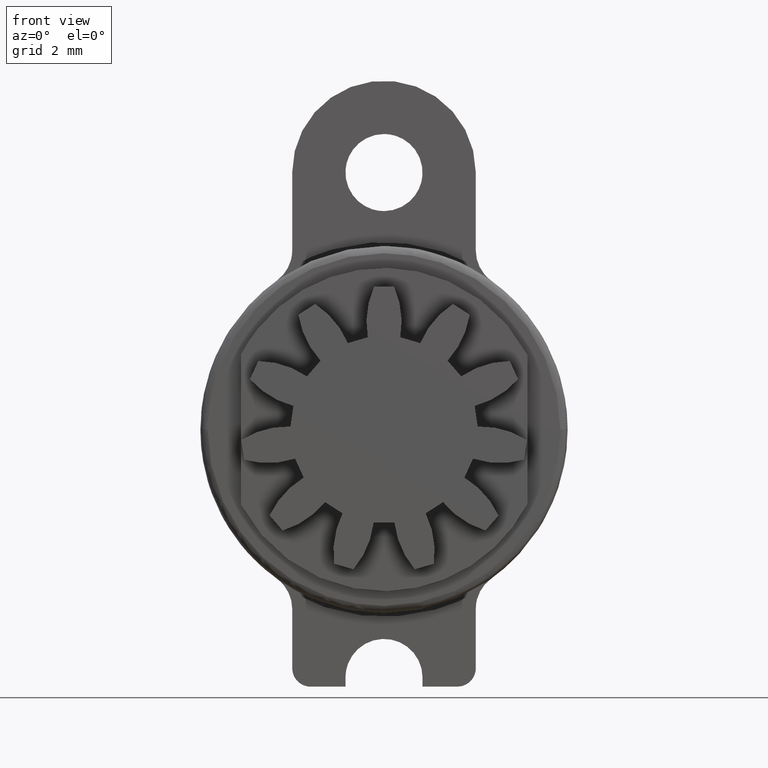
[diagram: clean part render]
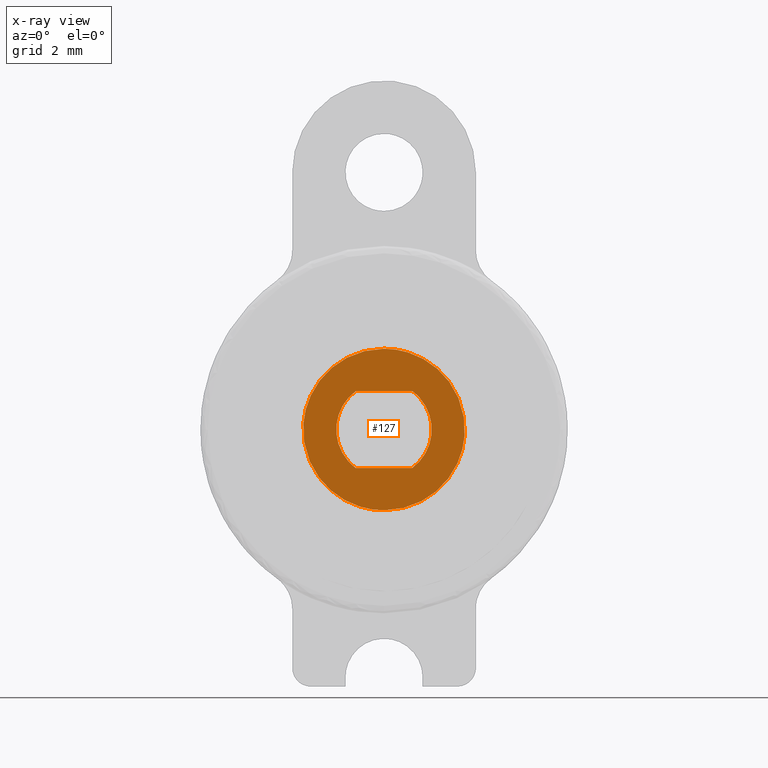
[diagram: x-ray — body ghosted, one internal face saturated and labeled with its STEP entity id]
A machine part, front view, then the same camera in x-ray: the body is ghosted and one INTERNAL B-rep face — a face not visible from any outside direction — is saturated and labeled: STEP entity #127.
In plain terms, the highlighted face is a freeform B-spline surface patch.
Its self-contained STEP definition (entity closure, byte-faithful):
#5=CARTESIAN_POINT('',(-2.419108497303079,-2.500000000000000,-2.419779991471919));
#6=CARTESIAN_POINT('',(-2.419108497303079,-2.500000000000000,2.419780109489115));
#7=CARTESIAN_POINT('',(2.419108575981209,-2.500000000000000,-2.419779991471919));
#8=CARTESIAN_POINT('',(2.419108575981209,-2.500000000000000,2.419780109489115));
#9=B_SPLINE_SURFACE_WITH_KNOTS('',1,1,((#5,#7),(#6,#8)),.UNSPECIFIED.,.F.,.F.,.U.,(2,2),(2,2),(0.0,4.839560100961034),(0.0,4.838217073284289),.UNSPECIFIED.);
#10=CARTESIAN_POINT('',(-2.193218134212658,-2.499999999998625,0.172610010609037));
#11=VERTEX_POINT('',#10);
#12=CARTESIAN_POINT('',(0.0,-2.500000000000000,-2.199999999999975));
#13=VERTEX_POINT('',#12);
#14=CARTESIAN_POINT('',(-2.193218134212657,-2.499999999998625,0.172610010609036));
#15=CARTESIAN_POINT('',(-2.200000000000379,-2.499999999998650,0.086438235420795));
#16=CARTESIAN_POINT('',(-2.200000000000371,-2.499999999998678,3.097929E-014));
#17=CARTESIAN_POINT('',(-2.200000000000165,-2.499999999999365,-2.199999999999960));
#18=CARTESIAN_POINT('',(0.0,-2.500000000000000,-2.199999999999975));
#26=(BOUNDED_CURVE()B_SPLINE_CURVE(2,(#14,#15,#16,#17,#18),.UNSPECIFIED.,.F.,.U.)B_SPLINE_CURVE_WITH_KNOTS((3,2,3),(0.736331300632161,0.750000000000000,1.0),.UNSPECIFIED.)CURVE()GEOMETRIC_REPRESENTATION_ITEM()RATIONAL_B_SPLINE_CURVE((0.969723356170552,0.983986122580641,1.0,0.707106781186547,1.0))REPRESENTATION_ITEM(''));
#27=EDGE_CURVE('',#11,#13,#26,.T.);
#28=ORIENTED_EDGE('',*,*,#27,.F.);
#29=CARTESIAN_POINT('',(0.0,-2.500000000000000,2.199999999999975));
#30=VERTEX_POINT('',#29);
#31=CARTESIAN_POINT('',(0.0,-2.500000000000000,2.199999999999975));
#32=CARTESIAN_POINT('',(-2.033659081641031,-2.499999999999312,2.199999999999991));
#33=CARTESIAN_POINT('',(-2.193218134212657,-2.499999999998625,0.172610010609036));
#41=(BOUNDED_CURVE()B_SPLINE_CURVE(2,(#31,#32,#33),.UNSPECIFIED.,.F.,.U.)B_SPLINE_CURVE_WITH_KNOTS((3,3),(0.500000000000000,0.736331300632161),.UNSPECIFIED.)CURVE()GEOMETRIC_REPRESENTATION_ITEM()RATIONAL_B_SPLINE_CURVE((1.0,0.723120658605906,0.969723356170552))REPRESENTATION_ITEM(''));
#42=EDGE_CURVE('',#30,#11,#41,.T.);
#43=ORIENTED_EDGE('',*,*,#42,.F.);
#44=CARTESIAN_POINT('',(2.193218134212658,-2.499999999998625,-0.172610010609037));
#45=VERTEX_POINT('',#44);
#46=CARTESIAN_POINT('',(2.193218134212659,-2.499999999998625,-0.172610010609036));
#47=CARTESIAN_POINT('',(2.200000000000379,-2.499999999998650,-0.086438235420796));
#48=CARTESIAN_POINT('',(2.200000000000371,-2.499999999998678,-3.132647E-014));
#49=CARTESIAN_POINT('',(2.200000000000165,-2.499999999999365,2.199999999999960));
#50=CARTESIAN_POINT('',(0.0,-2.500000000000000,2.199999999999975));
#58=(BOUNDED_CURVE()B_SPLINE_CURVE(2,(#46,#47,#48,#49,#50),.UNSPECIFIED.,.F.,.U.)B_SPLINE_CURVE_WITH_KNOTS((3,2,3),(0.236331300632161,0.250000000000000,0.500000000000000),.UNSPECIFIED.)CURVE()GEOMETRIC_REPRESENTATION_ITEM()RATIONAL_B_SPLINE_CURVE((0.969723356170552,0.983986122580641,1.0,0.707106781186547,1.0))REPRESENTATION_ITEM(''));
#59=EDGE_CURVE('',#45,#30,#58,.T.);
#60=ORIENTED_EDGE('',*,*,#59,.F.);
#61=CARTESIAN_POINT('',(0.0,-2.500000000000000,-2.199999999999975));
#62=CARTESIAN_POINT('',(2.033659081641031,-2.499999999999312,-2.199999999999991));
#63=CARTESIAN_POINT('',(2.193218134212659,-2.499999999998625,-0.172610010609036));
#71=(BOUNDED_CURVE()B_SPLINE_CURVE(2,(#61,#62,#63),.UNSPECIFIED.,.F.,.U.)B_SPLINE_CURVE_WITH_KNOTS((3,3),(0.0,0.236331300632161),.UNSPECIFIED.)CURVE()GEOMETRIC_REPRESENTATION_ITEM()RATIONAL_B_SPLINE_CURVE((1.0,0.723120658605906,0.969723356170552))REPRESENTATION_ITEM(''));
#72=EDGE_CURVE('',#13,#45,#71,.T.);
#73=ORIENTED_EDGE('',*,*,#72,.F.);
#74=EDGE_LOOP('',(#28,#43,#60,#73));
#75=FACE_OUTER_BOUND('',#74,.T.);
#76=CARTESIAN_POINT('',(0.766485485837798,-2.500000000000000,-1.050000000000024));
#77=VERTEX_POINT('',#76);
#78=CARTESIAN_POINT('',(0.766485485837798,-2.499999999999945,1.049999999999970));
#79=VERTEX_POINT('',#78);
#80=CARTESIAN_POINT('',(0.766485485837798,-2.500000000000000,-1.050000000000024));
#81=CARTESIAN_POINT('',(0.848766805836726,-2.499999999999986,-0.989960478851077));
#82=CARTESIAN_POINT('',(0.980301628567791,-2.499999999999990,-0.867842707944905));
#83=CARTESIAN_POINT('',(1.146721133180114,-2.499999999999952,-0.633286651383618));
#84=CARTESIAN_POINT('',(1.242565658524558,-2.499999999999948,-0.409114704531231));
#85=CARTESIAN_POINT('',(1.288396718259412,-2.499999999999950,-0.197083290929289));
#86=CARTESIAN_POINT('',(1.303554868444070,-2.499999999999939,-0.025574657485040));
#87=CARTESIAN_POINT('',(1.294017655028730,-2.499999999999958,0.191250755428349));
#88=CARTESIAN_POINT('',(1.241759034062355,-2.499999999999927,0.409428616661021));
#89=CARTESIAN_POINT('',(1.138001131119005,-2.499999999999967,0.642596077041574));
#90=CARTESIAN_POINT('',(0.994401468431855,-2.499999999999918,0.854761595672109));
#91=CARTESIAN_POINT('',(0.848768458846452,-2.499999999999946,0.989959730055645));
#92=CARTESIAN_POINT('',(0.766485485837798,-2.499999999999945,1.049999999999970));
#93=B_SPLINE_CURVE_WITH_KNOTS('',3,(#80,#81,#82,#83,#84,#85,#86,#87,#88,#89,#90,#91,#92),.UNSPECIFIED.,.F.,.U.,(4,1,1,1,1,1,1,1,1,1,4),(9.536172E-009,0.305572015905110,0.534758150989271,0.859436871903068,1.031328049701779,1.184112309332895,1.375088046668505,1.680670021553134,1.852559159783594,2.139037937150734,2.444613708668202),.UNSPECIFIED.);
#94=EDGE_CURVE('',#77,#79,#93,.T.);
#95=ORIENTED_EDGE('',*,*,#94,.T.);
#96=CARTESIAN_POINT('',(-0.766485485837798,-2.499999999999945,1.049999999999970));
#97=VERTEX_POINT('',#96);
#98=CARTESIAN_POINT('',(0.766485485837798,-2.499999999999945,1.049999999999970));
#99=CARTESIAN_POINT('',(-0.766485485837798,-2.499999999999945,1.049999999999970));
#100=QUASI_UNIFORM_CURVE('',1,(#98,#99),.UNSPECIFIED.,.F.,.U.);
#101=EDGE_CURVE('',#79,#97,#100,.T.);
#102=ORIENTED_EDGE('',*,*,#101,.T.);
#103=CARTESIAN_POINT('',(-0.766485485837795,-2.499999999999945,-1.050000000000000));
#104=VERTEX_POINT('',#103);
#105=CARTESIAN_POINT('',(-0.766485485837798,-2.499999999999945,1.049999999999970));
#106=CARTESIAN_POINT('',(-0.848767426162043,-2.499999999999945,0.989960031112634));
#107=CARTESIAN_POINT('',(-0.989701438461333,-2.499999999999942,0.859123707411480));
#108=CARTESIAN_POINT('',(-1.138364102876192,-2.499999999999940,0.642904420220929));
#109=CARTESIAN_POINT('',(-1.247440988292657,-2.499999999999940,0.397820583738909));
#110=CARTESIAN_POINT('',(-1.301701685852752,-2.499999999999950,0.146995232258334));
#111=CARTESIAN_POINT('',(-1.301670482546249,-2.499999999999941,-0.102253557989181));
#112=CARTESIAN_POINT('',(-1.261638943017265,-2.499999999999959,-0.347963697314180));
#113=CARTESIAN_POINT('',(-1.166739922937273,-2.499999999999909,-0.600168767635353));
#114=CARTESIAN_POINT('',(-0.994400051496644,-2.500000000000008,-0.854761880186780));
#115=CARTESIAN_POINT('',(-0.848767986244029,-2.499999999999886,-0.989959072290859));
#116=CARTESIAN_POINT('',(-0.766485485837795,-2.499999999999945,-1.050000000000000));
#117=B_SPLINE_CURVE_WITH_KNOTS('',3,(#105,#106,#107,#108,#109,#110,#111,#112,#113,#114,#115,#116),.UNSPECIFIED.,.F.,.U.,(4,1,1,1,1,1,1,1,1,4),(9.536137E-009,0.305572015905073,0.572955828083201,0.783043234385743,1.107721725618789,1.336891373887997,1.527882629339949,1.852559159783576,2.139037937150705,2.444613708668158),.UNSPECIFIED.);
#118=EDGE_CURVE('',#97,#104,#117,.T.);
#119=ORIENTED_EDGE('',*,*,#118,.T.);
#120=CARTESIAN_POINT('',(-0.766485485837795,-2.499999999999945,-1.050000000000000));
#121=CARTESIAN_POINT('',(0.766485485837798,-2.500000000000000,-1.050000000000024));
#122=QUASI_UNIFORM_CURVE('',1,(#120,#121),.UNSPECIFIED.,.F.,.U.);
#123=EDGE_CURVE('',#104,#77,#122,.T.);
#124=ORIENTED_EDGE('',*,*,#123,.T.);
#125=EDGE_LOOP('',(#95,#102,#119,#124));
#126=FACE_BOUND('',#125,.T.);
#127=ADVANCED_FACE('',(#75,#126),#9,.T.);